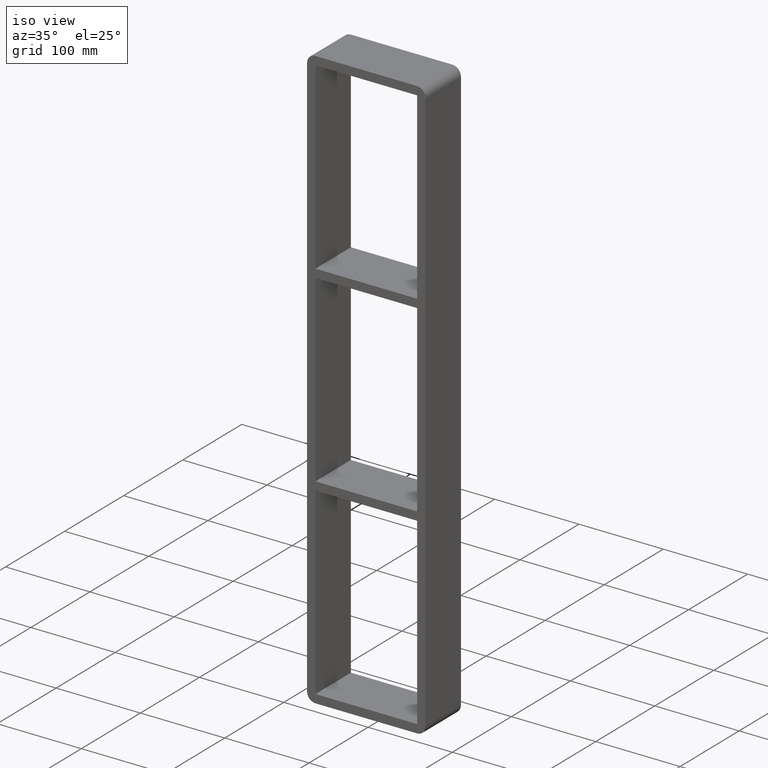
[diagram: clean part render]
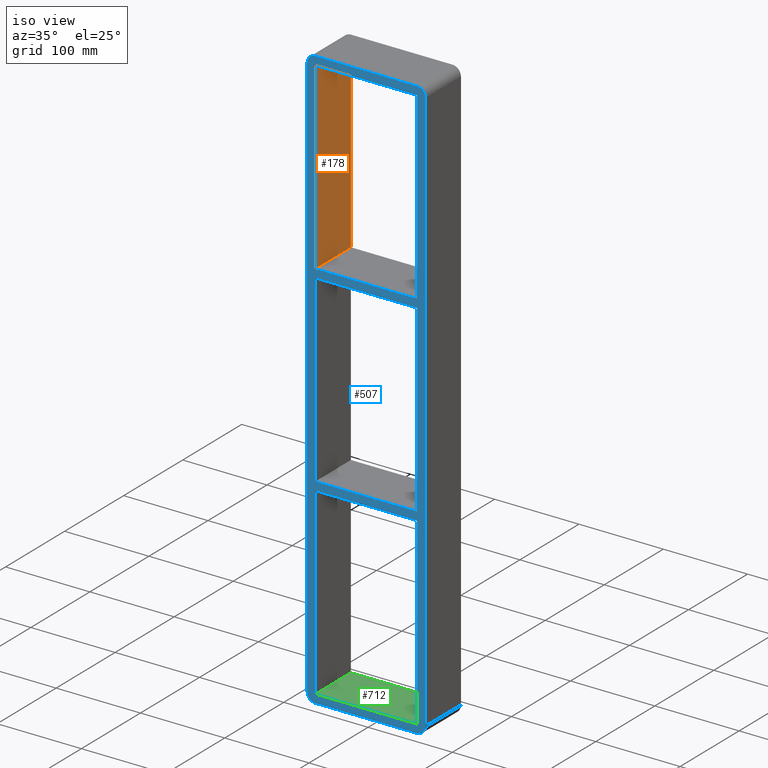
[diagram: same view with three faces highlighted in distinct colors, each labeled with its STEP entity id]
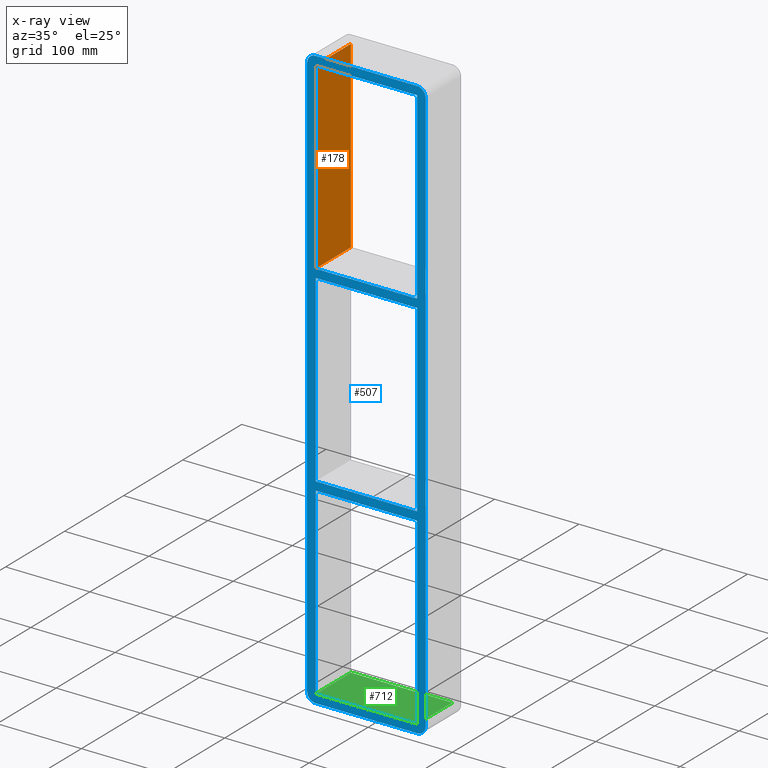
[diagram: x-ray of the same camera — body ghosted, the three highlighted faces saturated]
A machine part, iso view with three faces highlighted in distinct colors.
The next image is the same camera in x-ray (body ghosted, the three faces saturated) — at least one of them is partly hidden behind the body in this view.
Their STEP definitions:

[orange] entity #178 — the highlighted planar face has unit normal (-1, 0, 0).
#113=CARTESIAN_POINT('',(-60.249999999999666,-3.0,118.99999999999994));
#114=VERTEX_POINT('',#113);
#131=CARTESIAN_POINT('',(-60.249999999999666,57.0,118.99999999999994));
#132=VERTEX_POINT('',#131);
#139=CARTESIAN_POINT('',(-60.25,-3.0,118.99999999999993));
#140=DIRECTION('',(0.0,1.0,0.0));
#141=VECTOR('',#140,60.000000000000007);
#142=LINE('',#139,#141);
#143=EDGE_CURVE('',#114,#132,#142,.T.);
#148=CARTESIAN_POINT('',(-60.25,0.0,-337.0));
#149=DIRECTION('',(-1.0,0.0,0.0));
#150=DIRECTION('',(0.0,0.0,1.0));
#151=AXIS2_PLACEMENT_3D('',#148,#149,#150);
#152=PLANE('',#151);
#153=ORIENTED_EDGE('',*,*,#143,.T.);
#154=CARTESIAN_POINT('',(-60.25,57.0,337.0));
#155=VERTEX_POINT('',#154);
#156=CARTESIAN_POINT('',(-60.25,57.0,337.0));
#157=DIRECTION('',(0.0,0.0,-1.0));
#158=VECTOR('',#157,218.00000000000003);
#159=LINE('',#156,#158);
#160=EDGE_CURVE('',#155,#132,#159,.T.);
#161=ORIENTED_EDGE('',*,*,#160,.F.);
#162=CARTESIAN_POINT('',(-60.25,-3.0,337.0));
#163=VERTEX_POINT('',#162);
#164=CARTESIAN_POINT('',(-60.25,-3.0,337.00000000000011));
#165=DIRECTION('',(0.0,1.0,0.0));
#166=VECTOR('',#165,60.0);
#167=LINE('',#164,#166);
#168=EDGE_CURVE('',#163,#155,#167,.T.);
#169=ORIENTED_EDGE('',*,*,#168,.F.);
#170=CARTESIAN_POINT('',(-60.25,-3.0,118.99999999999997));
#171=DIRECTION('',(0.0,0.0,1.0));
#172=VECTOR('',#171,218.00000000000003);
#173=LINE('',#170,#172);
#174=EDGE_CURVE('',#114,#163,#173,.T.);
#175=ORIENTED_EDGE('',*,*,#174,.F.);
#176=EDGE_LOOP('',(#153,#161,#169,#175));
#177=FACE_OUTER_BOUND('',#176,.T.);
#178=ADVANCED_FACE('',(#177),#152,.F.);

[blue] entity #507 — the highlighted planar face has unit normal (0, 1, 0).
#73=CARTESIAN_POINT('',(60.249999999996362,-3.0,108.99999999999061));
#74=VERTEX_POINT('',#73);
#75=CARTESIAN_POINT('',(-60.249999999999666,-3.0,108.99999999999056));
#76=VERTEX_POINT('',#75);
#77=CARTESIAN_POINT('',(60.249999999996362,-3.0,108.99999999999061));
#78=DIRECTION('',(-1.0,0.0,0.0));
#79=VECTOR('',#78,120.49999999999602);
#80=LINE('',#77,#79);
#81=EDGE_CURVE('',#74,#76,#80,.T.);
#113=CARTESIAN_POINT('',(-60.249999999999666,-3.0,118.99999999999994));
#114=VERTEX_POINT('',#113);
#115=CARTESIAN_POINT('',(60.249999999999908,-3.0,118.99999999999994));
#116=VERTEX_POINT('',#115);
#117=CARTESIAN_POINT('',(-60.249999999999666,-3.0,118.99999999999994));
#118=DIRECTION('',(1.0,0.0,0.0));
#119=VECTOR('',#118,120.49999999999957);
#120=LINE('',#117,#119);
#121=EDGE_CURVE('',#114,#116,#120,.T.);
#162=CARTESIAN_POINT('',(-60.25,-3.0,337.0));
#163=VERTEX_POINT('',#162);
#170=CARTESIAN_POINT('',(-60.25,-3.0,118.99999999999997));
#171=DIRECTION('',(0.0,0.0,1.0));
#172=VECTOR('',#171,218.00000000000003);
#173=LINE('',#170,#172);
#174=EDGE_CURVE('',#114,#163,#173,.T.);
#193=CARTESIAN_POINT('',(60.249999999999908,-3.0,-109.00000000000006));
#194=VERTEX_POINT('',#193);
#201=CARTESIAN_POINT('',(60.25,-3.0,108.99999999999061));
#202=DIRECTION('',(0.0,0.0,-1.0));
#203=VECTOR('',#202,217.99999999999062);
#204=LINE('',#201,#203);
#205=EDGE_CURVE('',#74,#194,#204,.T.);
#216=CARTESIAN_POINT('',(60.25,-3.0,337.0));
#217=VERTEX_POINT('',#216);
#218=CARTESIAN_POINT('',(60.25,-3.0,337.0));
#219=DIRECTION('',(0.0,0.0,-1.0));
#220=VECTOR('',#219,218.00000000000006);
#221=LINE('',#218,#220);
#222=EDGE_CURVE('',#217,#116,#221,.T.);
#246=CARTESIAN_POINT('',(60.249999999996362,-3.0,-119.00000000000941));
#247=VERTEX_POINT('',#246);
#248=CARTESIAN_POINT('',(-60.249999999999666,-3.0,-119.00000000000944));
#249=VERTEX_POINT('',#248);
#250=CARTESIAN_POINT('',(60.249999999996362,-3.0,-119.00000000000941));
#251=DIRECTION('',(-1.0,0.0,0.0));
#252=VECTOR('',#251,120.49999999999602);
#253=LINE('',#250,#252);
#254=EDGE_CURVE('',#247,#249,#253,.T.);
#286=CARTESIAN_POINT('',(-60.249999999999666,-3.0,-109.00000000000006));
#287=VERTEX_POINT('',#286);
#288=CARTESIAN_POINT('',(-60.249999999999666,-3.0,-109.00000000000006));
#289=DIRECTION('',(1.0,0.0,0.0));
#290=VECTOR('',#289,120.49999999999957);
#291=LINE('',#288,#290);
#292=EDGE_CURVE('',#287,#194,#291,.T.);
#318=CARTESIAN_POINT('',(-60.25,-3.0,-109.00000000000006));
#319=DIRECTION('',(0.0,0.0,1.0));
#320=VECTOR('',#319,217.99999999999065);
#321=LINE('',#318,#320);
#322=EDGE_CURVE('',#287,#76,#321,.T.);
#348=CARTESIAN_POINT('',(60.25,-3.0,-337.0));
#349=VERTEX_POINT('',#348);
#356=CARTESIAN_POINT('',(60.25,-3.0,-119.00000000000941));
#357=DIRECTION('',(0.0,0.0,-1.0));
#358=VECTOR('',#357,217.99999999999059);
#359=LINE('',#356,#358);
#360=EDGE_CURVE('',#247,#349,#359,.T.);
#381=CARTESIAN_POINT('',(70.25,-3.0,-336.99999999999994));
#382=VERTEX_POINT('',#381);
#389=CARTESIAN_POINT('',(60.25,-3.0,-346.99999999999994));
#390=VERTEX_POINT('',#389);
#391=CARTESIAN_POINT('',(60.25,-3.0,-336.99999999999994));
#392=DIRECTION('',(0.0,1.0,0.0));
#393=DIRECTION('',(0.707106781186547,0.0,-0.707106781186547));
#394=AXIS2_PLACEMENT_3D('',#391,#392,#393);
#395=CIRCLE('',#394,9.999999999999998);
#396=EDGE_CURVE('',#382,#390,#395,.T.);
#407=CARTESIAN_POINT('',(0.0,-3.0,7.152258E-014));
#408=DIRECTION('',(0.0,1.0,0.0));
#409=DIRECTION('',(0.0,0.0,1.0));
#410=AXIS2_PLACEMENT_3D('',#407,#408,#409);
#411=PLANE('',#410);
#412=ORIENTED_EDGE('',*,*,#396,.F.);
#413=CARTESIAN_POINT('',(70.25,-3.0,337.00000000000011));
#414=VERTEX_POINT('',#413);
#415=CARTESIAN_POINT('',(70.25,-3.0,-336.99999999999989));
#416=DIRECTION('',(0.0,0.0,1.0));
#417=VECTOR('',#416,674.0);
#418=LINE('',#415,#417);
#419=EDGE_CURVE('',#382,#414,#418,.T.);
#420=ORIENTED_EDGE('',*,*,#419,.T.);
#421=CARTESIAN_POINT('',(60.25,-3.0,347.00000000000011));
#422=VERTEX_POINT('',#421);
#423=CARTESIAN_POINT('',(60.25,-3.0,337.00000000000011));
#424=DIRECTION('',(0.0,1.0,0.0));
#425=DIRECTION('',(0.707106781186547,0.0,0.707106781186547));
#426=AXIS2_PLACEMENT_3D('',#423,#424,#425);
#427=CIRCLE('',#426,9.999999999999998);
#428=EDGE_CURVE('',#422,#414,#427,.T.);
#429=ORIENTED_EDGE('',*,*,#428,.F.);
#430=CARTESIAN_POINT('',(-60.25,-3.0,347.00000000000011));
#431=VERTEX_POINT('',#430);
#432=CARTESIAN_POINT('',(60.25,-3.0,347.00000000000011));
#433=DIRECTION('',(-1.0,0.0,0.0));
#434=VECTOR('',#433,120.5);
#435=LINE('',#432,#434);
#436=EDGE_CURVE('',#422,#431,#435,.T.);
#437=ORIENTED_EDGE('',*,*,#436,.T.);
#438=CARTESIAN_POINT('',(-70.25,-3.0,337.00000000000011));
#439=VERTEX_POINT('',#438);
#440=CARTESIAN_POINT('',(-60.25,-3.0,337.00000000000011));
#441=DIRECTION('',(0.0,1.0,0.0));
#442=DIRECTION('',(-0.707106781186547,0.0,0.707106781186547));
#443=AXIS2_PLACEMENT_3D('',#440,#441,#442);
#444=CIRCLE('',#443,9.999999999999998);
#445=EDGE_CURVE('',#439,#431,#444,.T.);
#446=ORIENTED_EDGE('',*,*,#445,.F.);
#447=CARTESIAN_POINT('',(-70.25,-3.0,-336.99999999999994));
#448=VERTEX_POINT('',#447);
#449=CARTESIAN_POINT('',(-70.25,-3.0,337.00000000000006));
#450=DIRECTION('',(0.0,0.0,-1.0));
#451=VECTOR('',#450,674.0);
#452=LINE('',#449,#451);
#453=EDGE_CURVE('',#439,#448,#452,.T.);
#454=ORIENTED_EDGE('',*,*,#453,.T.);
#455=CARTESIAN_POINT('',(-60.25,-3.0,-346.99999999999994));
#456=VERTEX_POINT('',#455);
#457=CARTESIAN_POINT('',(-60.25,-3.0,-336.99999999999994));
#458=DIRECTION('',(0.0,1.0,0.0));
#459=DIRECTION('',(-0.707106781186547,0.0,-0.707106781186547));
#460=AXIS2_PLACEMENT_3D('',#457,#458,#459);
#461=CIRCLE('',#460,9.999999999999998);
#462=EDGE_CURVE('',#456,#448,#461,.T.);
#463=ORIENTED_EDGE('',*,*,#462,.F.);
#464=CARTESIAN_POINT('',(-60.25,-3.0,-346.99999999999994));
#465=DIRECTION('',(1.0,0.0,0.0));
#466=VECTOR('',#465,120.5);
#467=LINE('',#464,#466);
#468=EDGE_CURVE('',#456,#390,#467,.T.);
#469=ORIENTED_EDGE('',*,*,#468,.T.);
#470=EDGE_LOOP('',(#412,#420,#429,#437,#446,#454,#463,#469));
#471=FACE_OUTER_BOUND('',#470,.T.);
#472=ORIENTED_EDGE('',*,*,#174,.T.);
#473=CARTESIAN_POINT('',(-60.25,-3.0,337.00000000000011));
#474=DIRECTION('',(1.0,0.0,0.0));
#475=VECTOR('',#474,120.50000000000001);
#476=LINE('',#473,#475);
#477=EDGE_CURVE('',#163,#217,#476,.T.);
#478=ORIENTED_EDGE('',*,*,#477,.T.);
#479=ORIENTED_EDGE('',*,*,#222,.T.);
#480=ORIENTED_EDGE('',*,*,#121,.F.);
#481=EDGE_LOOP('',(#472,#478,#479,#480));
#482=FACE_BOUND('',#481,.T.);
#483=ORIENTED_EDGE('',*,*,#81,.F.);
#484=ORIENTED_EDGE('',*,*,#205,.T.);
#485=ORIENTED_EDGE('',*,*,#292,.F.);
#486=ORIENTED_EDGE('',*,*,#322,.T.);
#487=EDGE_LOOP('',(#483,#484,#485,#486));
#488=FACE_BOUND('',#487,.T.);
#489=ORIENTED_EDGE('',*,*,#254,.F.);
#490=ORIENTED_EDGE('',*,*,#360,.T.);
#491=CARTESIAN_POINT('',(-60.25,-3.0,-337.0));
#492=VERTEX_POINT('',#491);
#493=CARTESIAN_POINT('',(60.25,-3.0,-337.0));
#494=DIRECTION('',(-1.0,0.0,0.0));
#495=VECTOR('',#494,120.50000000000001);
#496=LINE('',#493,#495);
#497=EDGE_CURVE('',#349,#492,#496,.T.);
#498=ORIENTED_EDGE('',*,*,#497,.T.);
#499=CARTESIAN_POINT('',(-60.25,-3.0,-337.0));
#500=DIRECTION('',(0.0,0.0,1.0));
#501=VECTOR('',#500,217.99999999999056);
#502=LINE('',#499,#501);
#503=EDGE_CURVE('',#492,#249,#502,.T.);
#504=ORIENTED_EDGE('',*,*,#503,.T.);
#505=EDGE_LOOP('',(#489,#490,#498,#504));
#506=FACE_BOUND('',#505,.T.);
#507=ADVANCED_FACE('',(#471,#482,#488,#506),#411,.F.);

[green] entity #712 — the highlighted planar face has unit normal (0, 0, -1).
#340=CARTESIAN_POINT('',(60.25,57.0,-337.0));
#341=VERTEX_POINT('',#340);
#348=CARTESIAN_POINT('',(60.25,-3.0,-337.0));
#349=VERTEX_POINT('',#348);
#350=CARTESIAN_POINT('',(60.25,57.0,-337.0));
#351=DIRECTION('',(0.0,-1.0,0.0));
#352=VECTOR('',#351,60.0);
#353=LINE('',#350,#352);
#354=EDGE_CURVE('',#341,#349,#353,.T.);
#491=CARTESIAN_POINT('',(-60.25,-3.0,-337.0));
#492=VERTEX_POINT('',#491);
#493=CARTESIAN_POINT('',(60.25,-3.0,-337.0));
#494=DIRECTION('',(-1.0,0.0,0.0));
#495=VECTOR('',#494,120.50000000000001);
#496=LINE('',#493,#495);
#497=EDGE_CURVE('',#349,#492,#496,.T.);
#679=CARTESIAN_POINT('',(-60.25,57.0,-337.0));
#680=VERTEX_POINT('',#679);
#681=CARTESIAN_POINT('',(-60.25,-3.0,-337.0));
#682=DIRECTION('',(0.0,1.0,0.0));
#683=VECTOR('',#682,60.0);
#684=LINE('',#681,#683);
#685=EDGE_CURVE('',#492,#680,#684,.T.);
#696=CARTESIAN_POINT('',(60.25,0.0,-337.0));
#697=DIRECTION('',(0.0,0.0,-1.0));
#698=DIRECTION('',(-1.0,0.0,0.0));
#699=AXIS2_PLACEMENT_3D('',#696,#697,#698);
#700=PLANE('',#699);
#701=ORIENTED_EDGE('',*,*,#685,.F.);
#702=ORIENTED_EDGE('',*,*,#497,.F.);
#703=ORIENTED_EDGE('',*,*,#354,.F.);
#704=CARTESIAN_POINT('',(-60.250000000000014,57.0,-337.0));
#705=DIRECTION('',(1.0,0.0,0.0));
#706=VECTOR('',#705,120.50000000000001);
#707=LINE('',#704,#706);
#708=EDGE_CURVE('',#680,#341,#707,.T.);
#709=ORIENTED_EDGE('',*,*,#708,.F.);
#710=EDGE_LOOP('',(#701,#702,#703,#709));
#711=FACE_OUTER_BOUND('',#710,.T.);
#712=ADVANCED_FACE('',(#711),#700,.F.);